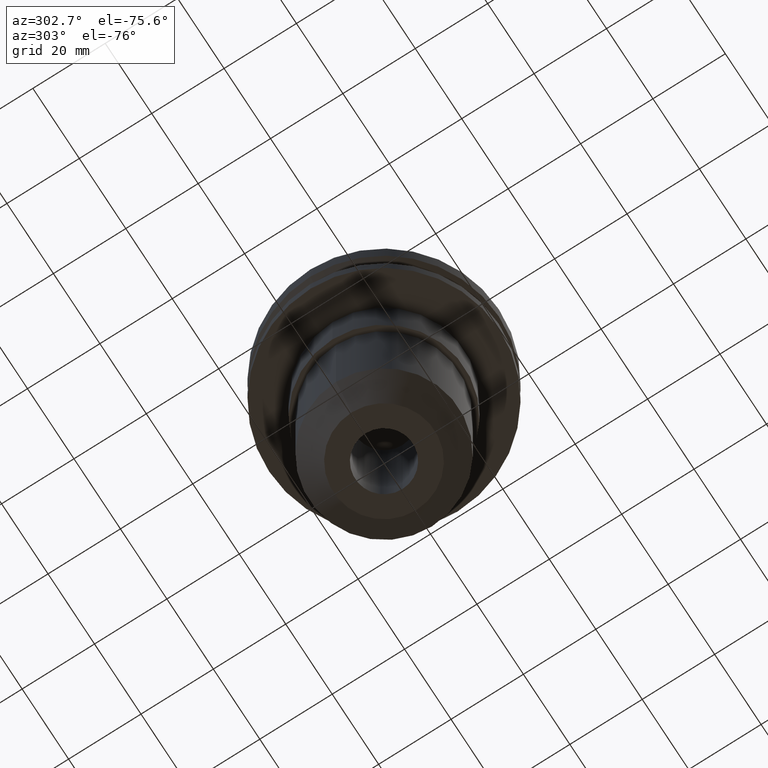
[diagram: clean part render]
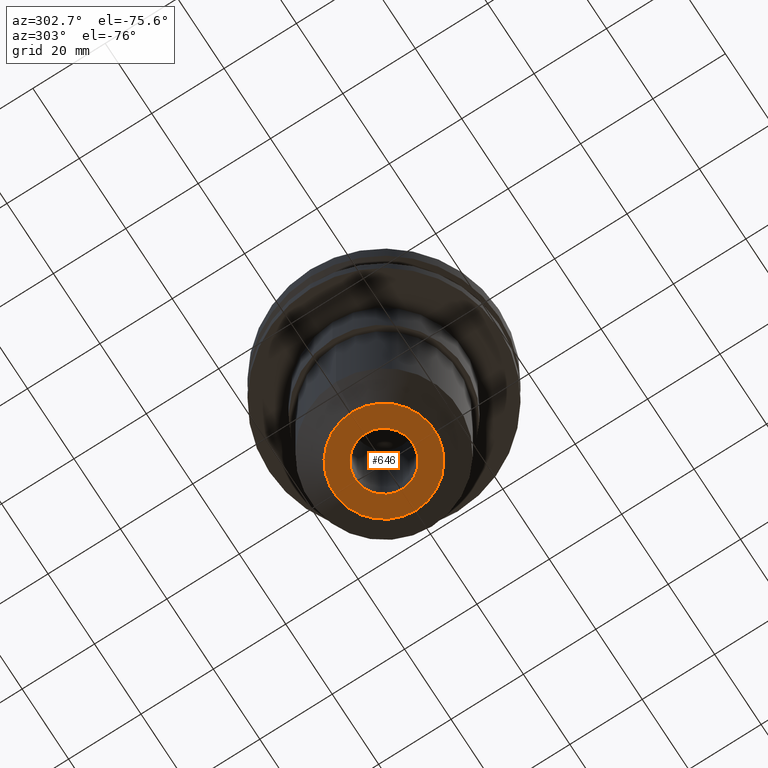
[diagram: same view with one face highlighted and labeled with its STEP entity id]
A machine part, auxiliary view. The second image highlights one B-rep face of the part: STEP entity #646.
In plain terms, the highlighted planar face has unit normal (0, -0, 1).
Its self-contained STEP definition (entity closure, byte-faithful):
#5 = EDGE_LOOP ( 'NONE', ( #97, #91 ) ) ;
#14 = EDGE_LOOP ( 'NONE', ( #20, #565 ) ) ;
#16 = DIRECTION ( 'NONE',  ( -0.000000000000000000, -0.000000000000000000, 1.000000000000000000 ) ) ;
#20 = ORIENTED_EDGE ( 'NONE', *, *, #260, .T. ) ;
#29 = FACE_OUTER_BOUND ( 'NONE', #5, .T. ) ;
#37 = DIRECTION ( 'NONE',  ( 1.000000000000000000, 0.000000000000000000, 0.000000000000000000 ) ) ;
#45 = VERTEX_POINT ( 'NONE', #121 ) ;
#91 = ORIENTED_EDGE ( 'NONE', *, *, #486, .F. ) ;
#97 = ORIENTED_EDGE ( 'NONE', *, *, #460, .F. ) ;
#121 = CARTESIAN_POINT ( 'NONE',  ( -13.93749999999997691, 2.117108154025985294E-15, -76.20000000000001705 ) ) ;
#122 = VERTEX_POINT ( 'NONE', #601 ) ;
#131 = CARTESIAN_POINT ( 'NONE',  ( 0.000000000000000000, 0.000000000000000000, -76.20000000000001705 ) ) ;
#135 = DIRECTION ( 'NONE',  ( 1.000000000000000000, 0.000000000000000000, 0.000000000000000000 ) ) ;
#141 = AXIS2_PLACEMENT_3D ( 'NONE', #301, #563, #37 ) ;
#142 = CARTESIAN_POINT ( 'NONE',  ( 0.000000000000000000, 0.000000000000000000, -76.20000000000000284 ) ) ;
#163 = CIRCLE ( 'NONE', #226, 13.93749999999997691 ) ;
#199 = CARTESIAN_POINT ( 'NONE',  ( 0.000000000000000000, 0.000000000000000000, -76.20000000000001705 ) ) ;
#226 = AXIS2_PLACEMENT_3D ( 'NONE', #131, #787, #135 ) ;
#254 = CARTESIAN_POINT ( 'NONE',  ( 13.93749999999997691, 0.000000000000000000, -76.20000000000001705 ) ) ;
#260 = EDGE_CURVE ( 'NONE', #450, #122, #262, .T. ) ;
#262 = CIRCLE ( 'NONE', #617, 7.937500000000000000 ) ;
#271 = CIRCLE ( 'NONE', #141, 7.937500000000000000 ) ;
#296 = DIRECTION ( 'NONE',  ( 1.000000000000000000, 0.000000000000000000, 0.000000000000000000 ) ) ;
#301 = CARTESIAN_POINT ( 'NONE',  ( 0.000000000000000000, 0.000000000000000000, -76.20000000000000284 ) ) ;
#303 = EDGE_CURVE ( 'NONE', #122, #450, #271, .T. ) ;
#324 = CARTESIAN_POINT ( 'NONE',  ( 7.937500000000000000, 0.000000000000000000, -76.20000000000000284 ) ) ;
#354 = AXIS2_PLACEMENT_3D ( 'NONE', #199, #846, #464 ) ;
#396 = CIRCLE ( 'NONE', #354, 13.93749999999997691 ) ;
#450 = VERTEX_POINT ( 'NONE', #324 ) ;
#460 = EDGE_CURVE ( 'NONE', #511, #45, #396, .T. ) ;
#464 = DIRECTION ( 'NONE',  ( 1.000000000000000000, 0.000000000000000000, 0.000000000000000000 ) ) ;
#486 = EDGE_CURVE ( 'NONE', #45, #511, #163, .T. ) ;
#511 = VERTEX_POINT ( 'NONE', #254 ) ;
#558 = AXIS2_PLACEMENT_3D ( 'NONE', #701, #562, #296 ) ;
#562 = DIRECTION ( 'NONE',  ( 0.000000000000000000, -0.000000000000000000, 1.000000000000000000 ) ) ;
#563 = DIRECTION ( 'NONE',  ( -0.000000000000000000, -0.000000000000000000, 1.000000000000000000 ) ) ;
#565 = ORIENTED_EDGE ( 'NONE', *, *, #303, .T. ) ;
#601 = CARTESIAN_POINT ( 'NONE',  ( -7.937500000000000000, 9.720633968232116190E-16, -76.20000000000000284 ) ) ;
#617 = AXIS2_PLACEMENT_3D ( 'NONE', #142, #16, #626 ) ;
#626 = DIRECTION ( 'NONE',  ( 1.000000000000000000, 0.000000000000000000, 0.000000000000000000 ) ) ;
#646 = ADVANCED_FACE ( 'NONE', ( #29, #696 ), #755, .F. ) ;
#696 = FACE_BOUND ( 'NONE', #14, .T. ) ;
#701 = CARTESIAN_POINT ( 'NONE',  ( 0.000000000000000000, 7.937500000000000000, -76.20000000000001705 ) ) ;
#755 = PLANE ( 'NONE',  #558 ) ;
#787 = DIRECTION ( 'NONE',  ( -0.000000000000000000, -0.000000000000000000, 1.000000000000000000 ) ) ;
#846 = DIRECTION ( 'NONE',  ( -0.000000000000000000, -0.000000000000000000, 1.000000000000000000 ) ) ;